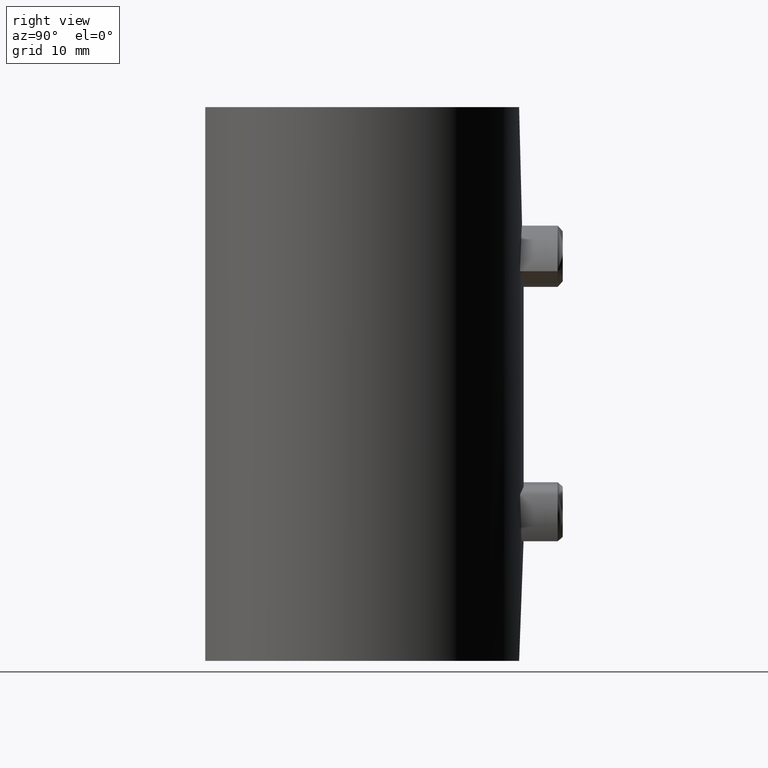
[diagram: clean part render]
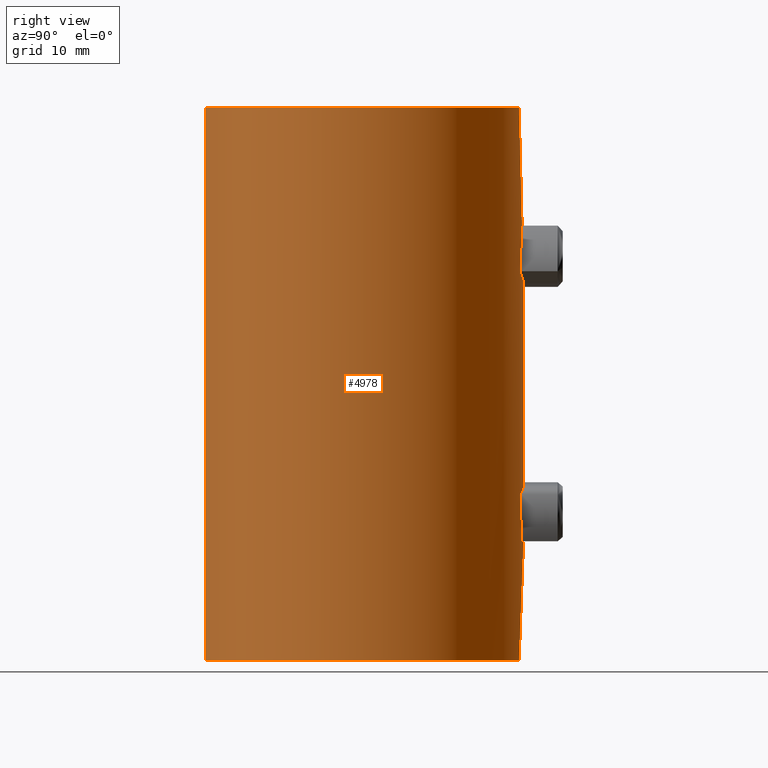
[diagram: same view with one face highlighted and labeled with its STEP entity id]
A machine part, right view. The second image highlights one B-rep face of the part: STEP entity #4978.
In plain terms, the highlighted cylindrical surface (partial cylindrical patch) has radius 18.7 mm, axis along (-0, -0, -1).
Its self-contained STEP definition (entity closure, byte-faithful):
#36 = CARTESIAN_POINT ( 'NONE',  ( -1.703678101952874613, 18.62316206916733208, -12.04921375678172168 ) ) ;
#85 = CARTESIAN_POINT ( 'NONE',  ( 0.4491028457022575027, 18.69588292729427081, -11.62244344202467516 ) ) ;
#140 = CARTESIAN_POINT ( 'NONE',  ( -3.224948308395771956, 18.42002368710149440, -13.90020980660867167 ) ) ;
#264 = CARTESIAN_POINT ( 'NONE',  ( -1.703678101952877277, 18.62316206916732497, 17.95078624321828187 ) ) ;
#316 = CARTESIAN_POINT ( 'NONE',  ( -0.8819730447841470644, 18.68048730662005141, 18.29126918212201147 ) ) ;
#373 = CARTESIAN_POINT ( 'NONE',  ( 3.290632168591123730, 18.40825135929672385, 14.11577476496437988 ) ) ;
#415 = CARTESIAN_POINT ( 'NONE',  ( -3.056197361445350591, 18.44876991922720677, 13.49363327830430137 ) ) ;
#462 = CARTESIAN_POINT ( 'NONE',  ( 2.248055005924963101, 18.56505139997483766, 12.43968577733411607 ) ) ;
#532 = VERTEX_POINT ( 'NONE', #6623 ) ;
#1065 = ORIENTED_EDGE ( 'NONE', *, *, #12884, .T. ) ;
#1267 = CARTESIAN_POINT ( 'NONE',  ( 0.2251214788206039596, 18.70000000000000284, -18.39999999999999858 ) ) ;
#1293 = EDGE_CURVE ( 'NONE', #11033, #11033, #9875, .T. ) ;
#1340 = CARTESIAN_POINT ( 'NONE',  ( -9.486769009248163798E-17, 18.70000000000000284, 11.60000000000000320 ) ) ;
#1418 = CARTESIAN_POINT ( 'NONE',  ( -3.056197361445351479, 18.44876991922720677, -16.50636672169570573 ) ) ;
#1438 = CARTESIAN_POINT ( 'NONE',  ( -2.702321628028136580, 18.50413466477082025, 17.07522270566067846 ) ) ;
#1491 = CARTESIAN_POINT ( 'NONE',  ( 1.509269081080593766, 18.64013548334795090, 11.94521043358734680 ) ) ;
#1511 = CARTESIAN_POINT ( 'NONE',  ( -2.951948864640074444, 18.46595746951029682, -16.70160617559558602 ) ) ;
#1527 = CARTESIAN_POINT ( 'NONE',  ( 3.226687052346817186, 18.41971730449068545, 16.09464756362376647 ) ) ;
#1574 = CARTESIAN_POINT ( 'NONE',  ( -2.705123101917725315, 18.50372655355359086, 12.92834011484850798 ) ) ;
#1626 = CARTESIAN_POINT ( 'NONE',  ( 3.055379545347636672, 18.44890418902858542, 13.49213590979179145 ) ) ;
#1800 = LINE ( 'NONE', #3958, #1984 ) ;
#1803 = FACE_BOUND ( 'NONE', #6574, .T. ) ;
#1852 = CARTESIAN_POINT ( 'NONE',  ( 0.000000000000000000, 0.000000000000000000, 32.50000000000000000 ) ) ;
#1984 = VECTOR ( 'NONE', #6312, 1000.000000000000000 ) ;
#2283 = CARTESIAN_POINT ( 'NONE',  ( 2.562924071184828012, 18.52422314715270346, -12.75468222078303349 ) ) ;
#2338 = CARTESIAN_POINT ( 'NONE',  ( 3.226687052346818518, 18.41971730449067124, -13.90535243637623886 ) ) ;
#2401 = CARTESIAN_POINT ( 'NONE',  ( -2.074248548666816294, 18.58553678234502726, -12.29682566477971228 ) ) ;
#2446 = CARTESIAN_POINT ( 'NONE',  ( 1.707797037677388108, 18.62277056045939361, -12.05171417751368779 ) ) ;
#2518 = CARTESIAN_POINT ( 'NONE',  ( 0.4463886680868277557, 18.69593913050281131, 11.62213716902417282 ) ) ;
#2622 = CARTESIAN_POINT ( 'NONE',  ( 3.400129208638835276, 18.38828761418478663, 15.22026060089912924 ) ) ;
#2669 = CARTESIAN_POINT ( 'NONE',  ( 3.399869631830862549, 18.38833560994510918, 14.77576830219241089 ) ) ;
#2722 = CARTESIAN_POINT ( 'NONE',  ( -0.4418743350873821085, 18.69607524419254929, 18.37862048074402566 ) ) ;
#2781 = CARTESIAN_POINT ( 'NONE',  ( -3.377422790417118126, 18.39252481771880809, 15.44963032188650764 ) ) ;
#3138 = VERTEX_POINT ( 'NONE', #8528 ) ;
#3483 = CARTESIAN_POINT ( 'NONE',  ( 1.097748600832175736, 18.66889102239455056, -18.22561319186608841 ) ) ;
#3540 = CARTESIAN_POINT ( 'NONE',  ( 2.248055005924960881, 18.56505139997483411, -17.56031422266588748 ) ) ;
#3595 = CARTESIAN_POINT ( 'NONE',  ( -2.558848563783020058, 18.52477549852563854, -12.75024292407797688 ) ) ;
#3656 = CARTESIAN_POINT ( 'NONE',  ( 2.246680102890498798, 18.56523233130796413, -12.43827006895684306 ) ) ;
#3732 = CARTESIAN_POINT ( 'NONE',  ( 0.8815578438338894651, 18.68047800733260999, 11.70878807794767873 ) ) ;
#3757 = CARTESIAN_POINT ( 'NONE',  ( -3.053471695154861720, 18.44922423388293353, -13.48800110178856748 ) ) ;
#3833 = CARTESIAN_POINT ( 'NONE',  ( 2.562924071184823127, 18.52422314715271057, 17.24531777921697540 ) ) ;
#3888 = CARTESIAN_POINT ( 'NONE',  ( 2.701499978925579804, 18.50426177331811672, 12.92350281659838096 ) ) ;
#3941 = CARTESIAN_POINT ( 'NONE',  ( -2.245157354334414546, 18.56540550856425753, 17.56288535196440748 ) ) ;
#3958 = CARTESIAN_POINT ( 'NONE',  ( -1.000000000000000000, -18.67324288922521092, 32.50000000000000000 ) ) ;
#3989 = CARTESIAN_POINT ( 'NONE',  ( -1.715074827323937345, 18.62569471770745011, 12.03105589909349327 ) ) ;
#4000 = DIRECTION ( 'NONE',  ( 1.000000000000000000, 0.000000000000000000, 0.000000000000000000 ) ) ;
#4041 = CARTESIAN_POINT ( 'NONE',  ( -2.948793019413057603, 18.46646045136811054, 16.70695963281476182 ) ) ;
#4052 = EDGE_CURVE ( 'NONE', #6985, #3138, #9968, .T. ) ;
#4273 = CARTESIAN_POINT ( 'NONE',  ( -1.000000000000000000, -18.67324288922521092, -32.50000000000000000 ) ) ;
#4369 = EDGE_CURVE ( 'NONE', #6985, #532, #10324, .T. ) ;
#4586 = CARTESIAN_POINT ( 'NONE',  ( 1.704372427770199039, 18.62309182116201001, -17.95032464953285256 ) ) ;
#4635 = CARTESIAN_POINT ( 'NONE',  ( 3.055379545347634451, 18.44890418902859253, -16.50786409020821921 ) ) ;
#4735 = CARTESIAN_POINT ( 'NONE',  ( -0.8819730447841414023, 18.68048730662004786, -11.70873081787798675 ) ) ;
#4889 = CARTESIAN_POINT ( 'NONE',  ( -1.101786202237634349, 18.66863850176808626, -18.22414249824129939 ) ) ;
#4978 = ADVANCED_FACE ( 'NONE', ( #1803, #6232, #10132 ), #14038, .T. ) ;
#4990 = CARTESIAN_POINT ( 'NONE',  ( 3.523657060577889411E-16, 18.69999999999999929, -18.39999999999999858 ) ) ;
#5011 = CARTESIAN_POINT ( 'NONE',  ( 1.704372427770200371, 18.62309182116201356, 12.04967535046715099 ) ) ;
#5038 = CARTESIAN_POINT ( 'NONE',  ( -0.4474200002064697701, 18.69593717211343176, -18.37785935976390306 ) ) ;
#5057 = CARTESIAN_POINT ( 'NONE',  ( 1.508799100366974510, 18.64017119416483581, 18.05500454816251832 ) ) ;
#5106 = CARTESIAN_POINT ( 'NONE',  ( 2.703934726191634219, 18.50389683986444211, 17.07308289948280233 ) ) ;
#5125 = EDGE_LOOP ( 'NONE', ( #14612, #1065, #10727, #12854 ) ) ;
#5159 = CARTESIAN_POINT ( 'NONE',  ( -1.101786202237637458, 18.66863850176807915, 11.77585750175868995 ) ) ;
#5733 = ORIENTED_EDGE ( 'NONE', *, *, #1293, .T. ) ;
#5740 = DIRECTION ( 'NONE',  ( -0.000000000000000000, -0.000000000000000000, -1.000000000000000000 ) ) ;
#5759 = CARTESIAN_POINT ( 'NONE',  ( 2.701499978925578027, 18.50426177331810962, -17.07649718340161726 ) ) ;
#5804 = CARTESIAN_POINT ( 'NONE',  ( 0.8857765948458035110, 18.68028724675117047, -11.70986603732259113 ) ) ;
#5854 = CARTESIAN_POINT ( 'NONE',  ( 2.560934286187820597, 18.52448380860311872, -17.24734861787778684 ) ) ;
#5866 = CARTESIAN_POINT ( 'NONE',  ( 1.000000000000000000, -18.67324288922521092, 32.50000000000000000 ) ) ;
#5962 = CARTESIAN_POINT ( 'NONE',  ( 2.703934726191639548, 18.50389683986444567, -12.92691710051720477 ) ) ;
#6146 = CARTESIAN_POINT ( 'NONE',  ( -0.2251214788206000739, 18.70000000000000284, 11.60000000000000320 ) ) ;
#6190 = CARTESIAN_POINT ( 'NONE',  ( 2.950055730701555134, 18.46626592187418225, 13.29497393727700150 ) ) ;
#6232 = FACE_BOUND ( 'NONE', #13319, .T. ) ;
#6238 = CARTESIAN_POINT ( 'NONE',  ( -0.2207728957259020575, 18.70001600484676274, 18.40008802666392285 ) ) ;
#6294 = CARTESIAN_POINT ( 'NONE',  ( -2.558848563783022279, 18.52477549852563854, 17.24975707592201601 ) ) ;
#6312 = DIRECTION ( 'NONE',  ( 0.000000000000000000, 0.000000000000000000, 1.000000000000000000 ) ) ;
#6334 = CARTESIAN_POINT ( 'NONE',  ( 2.949763486251673505, 18.46630327485788925, 16.70523637270890660 ) ) ;
#6574 = EDGE_LOOP ( 'NONE', ( #5733 ) ) ;
#6622 = CARTESIAN_POINT ( 'NONE',  ( 1.000000000000000000, -18.67324288922521092, 32.50000000000000000 ) ) ;
#6623 = CARTESIAN_POINT ( 'NONE',  ( 1.000000000000000000, -18.67324288922521092, -32.50000000000000000 ) ) ;
#6798 = EDGE_CURVE ( 'NONE', #7898, #7898, #9597, .T. ) ;
#6944 = CARTESIAN_POINT ( 'NONE',  ( 1.509269081080592434, 18.64013548334795090, -18.05478956641265142 ) ) ;
#6985 = VERTEX_POINT ( 'NONE', #5866 ) ;
#6991 = CARTESIAN_POINT ( 'NONE',  ( 1.508799100366979618, 18.64017119416483581, -11.94499545183749412 ) ) ;
#7041 = CARTESIAN_POINT ( 'NONE',  ( 1.097699802332757990, 18.66889155833841940, -11.77438646789166476 ) ) ;
#7088 = CARTESIAN_POINT ( 'NONE',  ( -1.505267282534316742, 18.64044716495049414, -11.94332727670736816 ) ) ;
#7153 = CARTESIAN_POINT ( 'NONE',  ( 3.523657060577889411E-16, 18.69999999999999929, -18.39999999999999858 ) ) ;
#7214 = CARTESIAN_POINT ( 'NONE',  ( -1.715074827323936679, 18.62569471770745366, -17.96894410090650140 ) ) ;
#7320 = CARTESIAN_POINT ( 'NONE',  ( -3.378302085932652687, 18.39236250047727594, -15.44312495445973354 ) ) ;
#7373 = CARTESIAN_POINT ( 'NONE',  ( -0.2251214788206064576, 18.69999999999999574, -18.39999999999999858 ) ) ;
#7395 = CARTESIAN_POINT ( 'NONE',  ( 2.073603953756134821, 18.58560198096746063, 12.29639730116436702 ) ) ;
#7440 = CARTESIAN_POINT ( 'NONE',  ( 1.097699802332752439, 18.66889155833842295, 18.22561353210834056 ) ) ;
#7494 = CARTESIAN_POINT ( 'NONE',  ( -3.226414948415579964, 18.41976385367979319, 13.90467831529806908 ) ) ;
#7516 = CARTESIAN_POINT ( 'NONE',  ( 0.000000000000000000, 18.69999999999999929, 11.60000000000000320 ) ) ;
#7549 = CARTESIAN_POINT ( 'NONE',  ( -0.8864645243576410039, 18.68026852181874986, 11.70996973296830035 ) ) ;
#7637 = DIRECTION ( 'NONE',  ( 1.000000000000000000, 0.000000000000000000, 0.000000000000000000 ) ) ;
#7898 = VERTEX_POINT ( 'NONE', #12306 ) ;
#8163 = CARTESIAN_POINT ( 'NONE',  ( 3.400129208638834832, 18.38828761418479019, -14.77973939910086543 ) ) ;
#8205 = CARTESIAN_POINT ( 'NONE',  ( 2.073603953756134821, 18.58560198096746419, -17.70360269883564186 ) ) ;
#8258 = CARTESIAN_POINT ( 'NONE',  ( 0.2234759208375928785, 18.69998389747483714, -11.60008856389518250 ) ) ;
#8309 = CARTESIAN_POINT ( 'NONE',  ( 3.378160016050484327, 18.39239008617352411, -15.44513957496309153 ) ) ;
#8421 = EDGE_CURVE ( 'NONE', #532, #15042, #13991, .T. ) ;
#8515 = CARTESIAN_POINT ( 'NONE',  ( -3.291996724354525394, 18.40800589144893351, -15.87865936284826773 ) ) ;
#8528 = CARTESIAN_POINT ( 'NONE',  ( -1.000000000000000000, -18.67324288922521092, 32.50000000000000000 ) ) ;
#8537 = CARTESIAN_POINT ( 'NONE',  ( 2.075517430712086941, 18.58538085335415246, 17.70207094795524938 ) ) ;
#8575 = CARTESIAN_POINT ( 'NONE',  ( -3.053471695154863497, 18.44922423388293353, 16.51199889821142364 ) ) ;
#8623 = CARTESIAN_POINT ( 'NONE',  ( 0.4491028457022510634, 18.69588292729426016, 18.37755655797532484 ) ) ;
#8681 = CARTESIAN_POINT ( 'NONE',  ( -2.951948864640073555, 18.46595746951030748, 13.29839382440441220 ) ) ;
#8737 = CARTESIAN_POINT ( 'NONE',  ( -0.4474200002064714354, 18.69593717211342820, 11.62214064023610760 ) ) ;
#8846 = CARTESIAN_POINT ( 'NONE',  ( 0.000000000000000000, 0.000000000000000000, 32.50000000000000000 ) ) ;
#9385 = CARTESIAN_POINT ( 'NONE',  ( 2.075517430712090050, 18.58538085335415246, -12.29792905204475240 ) ) ;
#9440 = CARTESIAN_POINT ( 'NONE',  ( 3.225096782625505476, 18.41999350392892865, -16.09897635250571568 ) ) ;
#9540 = CARTESIAN_POINT ( 'NONE',  ( 3.291006740325277402, 18.40818367789342602, -14.11751605901998730 ) ) ;
#9592 = CARTESIAN_POINT ( 'NONE',  ( -3.290433809925805253, 18.40828615646031707, -14.11558071363979039 ) ) ;
#9597 = B_SPLINE_CURVE_WITH_KNOTS ( 'NONE', 3,
 ( #7153, #1267, #10575, #11710, #3483, #6944, #4586, #8205, #3540, #5854, #5759, #14174, #4635, #9440, #12901, #8309, #11815, #8163, #14224, #9540, #2338, #14285, #15380, #5962, #2283, #3656, #9385, #2446, #6991, #7041, #5804, #85, #8258, #10732, #12838, #4735, #14067, #7088, #36, #2401, #10678, #3595, #11867, #15274, #3757, #140, #9592, #12026, #14433, #12069, #7320, #8515, #13225, #1418, #1511, #14485, #10986, #12121, #7214, #4889, #9749, #5038, #7373, #4990 ),
 .UNSPECIFIED., .T., .F.,
 ( 4, 2, 2, 2, 2, 2, 2, 2, 2, 2, 2, 2, 2, 2, 2, 2, 2, 2, 2, 2, 2, 2, 2, 2, 2, 2, 2, 2, 2, 2, 2, 4 ),
 ( 0.000000000000000000, 0.0006656734209286883702, 0.001331346841857376740, 0.001997020262786065436, 0.002662693683714754348, 0.003328367104643444128, 0.003994040525572134341, 0.004659713946500824988, 0.005325387367429514768, 0.005991060788358204547, 0.006656734209286893460, 0.007322407630215583239, 0.007988081051144272152, 0.008653754472072961931, 0.009319427893001651711, 0.009985101313930341491, 0.01065077473485903127, 0.01131644815578772278, 0.01198212157671641430, 0.01264779499764510408, 0.01331346841857379386, 0.01397914183950248364, 0.01464481526043117515, 0.01531048868135986667, 0.01597616210228855818, 0.01664183552321724796, 0.01730750894414594468, 0.01797318236507464140, 0.01863885578600333465, 0.01997020262786072461, 0.02063587604878941786, 0.02130154946971811458 ),
 .UNSPECIFIED. ) ;
#9611 = CARTESIAN_POINT ( 'NONE',  ( 0.2251214788206039041, 18.69999999999999929, 11.60000000000000320 ) ) ;
#9711 = CARTESIAN_POINT ( 'NONE',  ( -2.562227927366456992, 18.52430322870388224, 12.75414056778805794 ) ) ;
#9749 = CARTESIAN_POINT ( 'NONE',  ( -0.8864645243576398936, 18.68026852181875697, -18.29003026703170676 ) ) ;
#9767 = CARTESIAN_POINT ( 'NONE',  ( -3.290433809925802588, 18.40828615646030642, 15.88441928636019895 ) ) ;
#9828 = CARTESIAN_POINT ( 'NONE',  ( 0.2234759208375869111, 18.69998389747483358, 18.39991143610481927 ) ) ;
#9870 = CARTESIAN_POINT ( 'NONE',  ( 3.378160016050485659, 18.39239008617352056, 14.55486042503691735 ) ) ;
#9875 = B_SPLINE_CURVE_WITH_KNOTS ( 'NONE', 3,
 ( #1340, #9611, #2518, #3732, #11992, #1491, #5011, #7395, #462, #13448, #3888, #6190, #1626, #13302, #373, #9870, #2669, #2622, #12137, #10913, #1527, #14453, #6334, #5106, #3833, #14600, #8537, #12087, #5057, #7440, #13397, #8623, #9828, #6238, #2722, #316, #13357, #14500, #264, #11005, #3941, #6294, #1438, #4041, #8575, #14654, #9767, #2781, #14549, #10962, #12190, #12246, #7494, #415, #8681, #1574, #9711, #11057, #3989, #5159, #7549, #8737, #6146, #9918 ),
 .UNSPECIFIED., .T., .F.,
 ( 4, 2, 2, 2, 2, 2, 2, 2, 2, 2, 2, 2, 2, 2, 2, 2, 2, 2, 2, 2, 2, 2, 2, 2, 2, 2, 2, 2, 2, 2, 2, 4 ),
 ( 0.000000000000000000, 0.0006656734209286961764, 0.001331346841857392353, 0.001997020262786088421, 0.002662693683714785139, 0.003328367104643481858, 0.003994040525572178577, 0.004659713946500875295, 0.005325387367429571146, 0.005991060788358267865, 0.006656734209286959379, 0.007322407630215650026, 0.007988081051144341541, 0.008653754472073033055, 0.009319427893001724569, 0.009985101313930416084, 0.01065077473485910760, 0.01131644815578779911, 0.01198212157671649063, 0.01264779499764518214, 0.01331346841857387366, 0.01397914183950256517, 0.01464481526043125668, 0.01531048868135994646, 0.01597616210228863451, 0.01664183552321732082, 0.01730750894414600713, 0.01797318236507469344, 0.01863885578600337975, 0.01997020262786075237, 0.02063587604878944215, 0.02130154946971812499 ),
 .UNSPECIFIED. ) ;
#9918 = CARTESIAN_POINT ( 'NONE',  ( -9.486769009248163798E-17, 18.70000000000000284, 11.60000000000000320 ) ) ;
#9968 = CIRCLE ( 'NONE', #10384, 18.69999999999999929 ) ;
#9986 = DIRECTION ( 'NONE',  ( 0.000000000000000000, 0.000000000000000000, 1.000000000000000000 ) ) ;
#10132 = FACE_OUTER_BOUND ( 'NONE', #5125, .T. ) ;
#10138 = DIRECTION ( 'NONE',  ( -1.000000000000000000, 0.000000000000000000, 0.000000000000000000 ) ) ;
#10179 = AXIS2_PLACEMENT_3D ( 'NONE', #1852, #14937, #10138 ) ;
#10324 = LINE ( 'NONE', #6622, #10512 ) ;
#10384 = AXIS2_PLACEMENT_3D ( 'NONE', #8846, #9986, #4000 ) ;
#10512 = VECTOR ( 'NONE', #5740, 1000.000000000000000 ) ;
#10575 = CARTESIAN_POINT ( 'NONE',  ( 0.4463886680868283663, 18.69593913050281131, -18.37786283097582540 ) ) ;
#10678 = CARTESIAN_POINT ( 'NONE',  ( -2.245157354334411437, 18.56540550856425753, -12.43711464803559430 ) ) ;
#10727 = ORIENTED_EDGE ( 'NONE', *, *, #4052, .F. ) ;
#10732 = CARTESIAN_POINT ( 'NONE',  ( -0.2207728957258964231, 18.70001600484676274, -11.59991197333608248 ) ) ;
#10913 = CARTESIAN_POINT ( 'NONE',  ( 3.291006740325275626, 18.40818367789342247, 15.88248394098001270 ) ) ;
#10962 = CARTESIAN_POINT ( 'NONE',  ( -3.400170050625877849, 18.38828006250395219, 14.77799369080414316 ) ) ;
#10986 = CARTESIAN_POINT ( 'NONE',  ( -2.562227927366459213, 18.52430322870388224, -17.24585943221194384 ) ) ;
#11005 = CARTESIAN_POINT ( 'NONE',  ( -2.074248548666816738, 18.58553678234503082, 17.70317433522028239 ) ) ;
#11033 = VERTEX_POINT ( 'NONE', #7516 ) ;
#11057 = CARTESIAN_POINT ( 'NONE',  ( -2.093505831501417447, 18.58511559222732146, 12.28470636991181664 ) ) ;
#11247 = CARTESIAN_POINT ( 'NONE',  ( 0.000000000000000000, 0.000000000000000000, -32.50000000000000000 ) ) ;
#11710 = CARTESIAN_POINT ( 'NONE',  ( 0.8815578438338895761, 18.68047800733260644, -18.29121192205231949 ) ) ;
#11774 = ORIENTED_EDGE ( 'NONE', *, *, #6798, .T. ) ;
#11815 = CARTESIAN_POINT ( 'NONE',  ( 3.399869631830864325, 18.38833560994511629, -15.22423169780758556 ) ) ;
#11867 = CARTESIAN_POINT ( 'NONE',  ( -2.702321628028136136, 18.50413466477081315, -12.92477729433931799 ) ) ;
#11992 = CARTESIAN_POINT ( 'NONE',  ( 1.097748600832176402, 18.66889102239455411, 11.77438680813392580 ) ) ;
#12026 = CARTESIAN_POINT ( 'NONE',  ( -3.377422790417119014, 18.39252481771881520, -14.55036967811348170 ) ) ;
#12069 = CARTESIAN_POINT ( 'NONE',  ( -3.400170050625877405, 18.38828006250394154, -15.22200630919585151 ) ) ;
#12087 = CARTESIAN_POINT ( 'NONE',  ( 1.707797037677383889, 18.62277056045939361, 17.94828582248631221 ) ) ;
#12121 = CARTESIAN_POINT ( 'NONE',  ( -2.093505831501417891, 18.58511559222732856, -17.71529363008817626 ) ) ;
#12137 = CARTESIAN_POINT ( 'NONE',  ( 3.377946449020017727, 18.39242859090342463, 15.44607292958336053 ) ) ;
#12190 = CARTESIAN_POINT ( 'NONE',  ( -3.378302085932653132, 18.39236250047726529, 14.55687504554027001 ) ) ;
#12246 = CARTESIAN_POINT ( 'NONE',  ( -3.291996724354527171, 18.40800589144892996, 14.12134063715173582 ) ) ;
#12306 = CARTESIAN_POINT ( 'NONE',  ( 0.000000000000000000, 18.69999999999999929, -18.39999999999999503 ) ) ;
#12838 = CARTESIAN_POINT ( 'NONE',  ( -0.4418743350873776676, 18.69607524419255284, -11.62137951925597257 ) ) ;
#12854 = ORIENTED_EDGE ( 'NONE', *, *, #4369, .T. ) ;
#12884 = EDGE_CURVE ( 'NONE', #15042, #3138, #1800, .T. ) ;
#12901 = CARTESIAN_POINT ( 'NONE',  ( 3.290632168591123285, 18.40825135929672385, -15.88422523503563433 ) ) ;
#13225 = CARTESIAN_POINT ( 'NONE',  ( -3.226414948415581740, 18.41976385367979674, -16.09532168470192559 ) ) ;
#13302 = CARTESIAN_POINT ( 'NONE',  ( 3.225096782625506364, 18.41999350392893575, 13.90102364749428787 ) ) ;
#13319 = EDGE_LOOP ( 'NONE', ( #11774 ) ) ;
#13357 = CARTESIAN_POINT ( 'NONE',  ( -1.095894808114193486, 18.66898804624202413, 18.22615751300796560 ) ) ;
#13397 = CARTESIAN_POINT ( 'NONE',  ( 0.8857765948457969607, 18.68028724675117047, 18.29013396267741598 ) ) ;
#13448 = CARTESIAN_POINT ( 'NONE',  ( 2.560934286187823261, 18.52448380860312582, 12.75265138212221494 ) ) ;
#13991 = CIRCLE ( 'NONE', #14187, 18.69999999999999929 ) ;
#14038 = CYLINDRICAL_SURFACE ( 'NONE', #10179, 18.69999999999999929 ) ;
#14067 = CARTESIAN_POINT ( 'NONE',  ( -1.095894808114190822, 18.66898804624203478, -11.77384248699202907 ) ) ;
#14174 = CARTESIAN_POINT ( 'NONE',  ( 2.950055730701553358, 18.46626592187417870, -16.70502606272298962 ) ) ;
#14187 = AXIS2_PLACEMENT_3D ( 'NONE', #11247, #14742, #7637 ) ;
#14224 = CARTESIAN_POINT ( 'NONE',  ( 3.377946449020017727, 18.39242859090342463, -14.55392707041665012 ) ) ;
#14285 = CARTESIAN_POINT ( 'NONE',  ( 3.056001268335187593, 18.44880351565025478, -13.49314271735384629 ) ) ;
#14433 = CARTESIAN_POINT ( 'NONE',  ( -3.399827977613428143, 18.38834331180736825, -14.77281527971069863 ) ) ;
#14453 = CARTESIAN_POINT ( 'NONE',  ( 3.056001268335187149, 18.44880351565026189, 16.50685728264615548 ) ) ;
#14485 = CARTESIAN_POINT ( 'NONE',  ( -2.705123101917724426, 18.50372655355358731, -17.07165988515149380 ) ) ;
#14500 = CARTESIAN_POINT ( 'NONE',  ( -1.505267282534319406, 18.64044716495049769, 18.05667272329262474 ) ) ;
#14549 = CARTESIAN_POINT ( 'NONE',  ( -3.399827977613430363, 18.38834331180735404, 15.22718472028929604 ) ) ;
#14600 = CARTESIAN_POINT ( 'NONE',  ( 2.246680102890494801, 18.56523233130797124, 17.56172993104316049 ) ) ;
#14612 = ORIENTED_EDGE ( 'NONE', *, *, #8421, .T. ) ;
#14654 = CARTESIAN_POINT ( 'NONE',  ( -3.224948308395775065, 18.42002368710150151, 16.09979019339132478 ) ) ;
#14742 = DIRECTION ( 'NONE',  ( 0.000000000000000000, 0.000000000000000000, 1.000000000000000000 ) ) ;
#14937 = DIRECTION ( 'NONE',  ( -0.000000000000000000, -0.000000000000000000, -1.000000000000000000 ) ) ;
#15042 = VERTEX_POINT ( 'NONE', #4273 ) ;
#15274 = CARTESIAN_POINT ( 'NONE',  ( -2.948793019413054939, 18.46646045136810343, -13.29304036718523996 ) ) ;
#15380 = CARTESIAN_POINT ( 'NONE',  ( 2.949763486251678835, 18.46630327485788214, -13.29476362729111116 ) ) ;